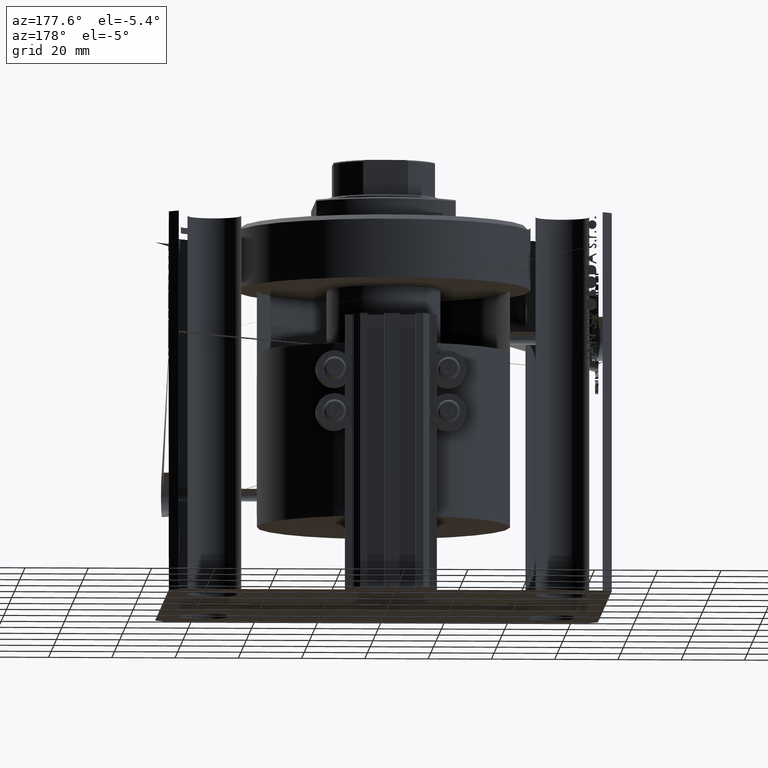
[diagram: clean part render]
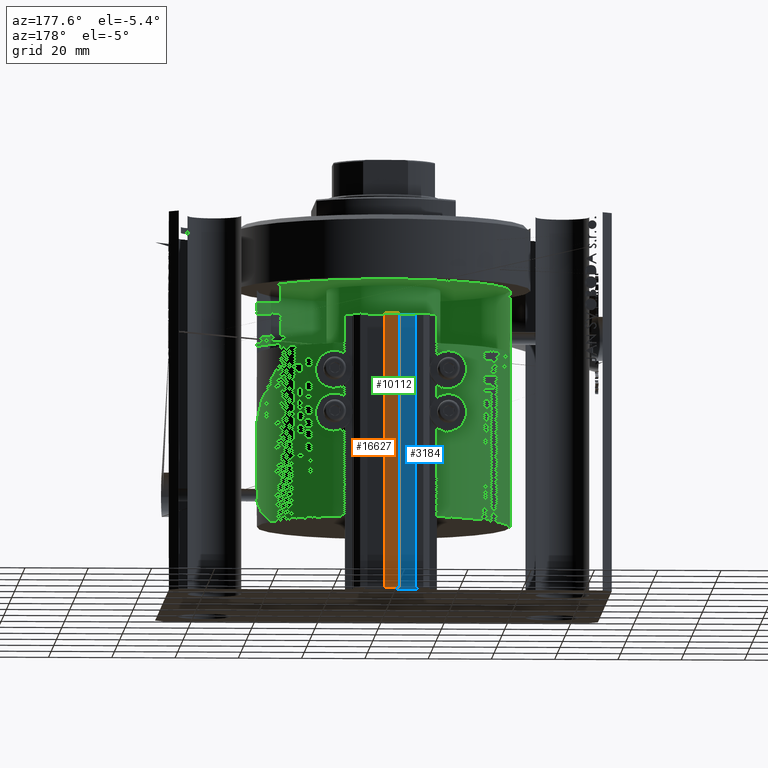
[diagram: same view with three faces highlighted in distinct colors, each labeled with its STEP entity id]
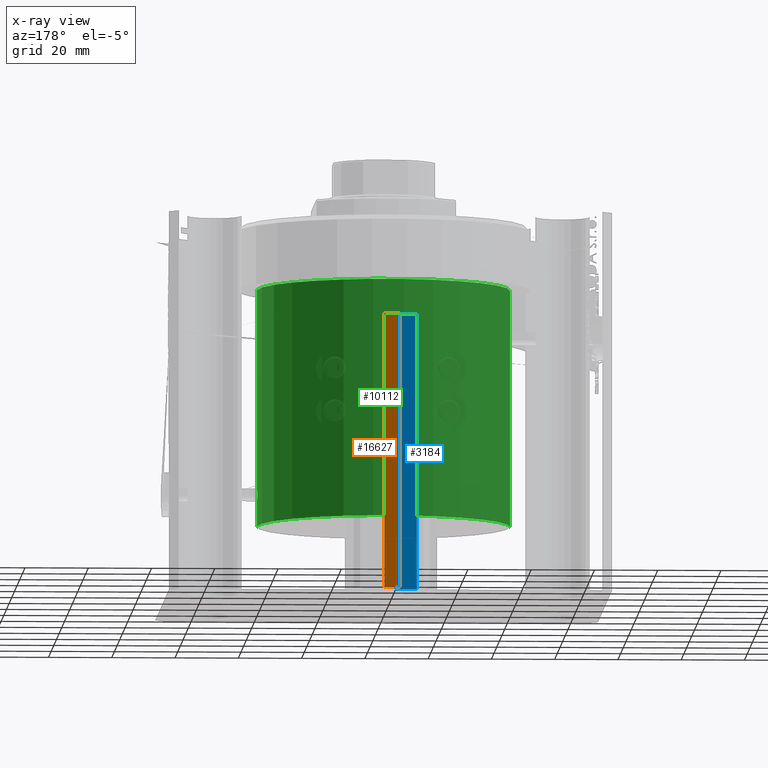
[diagram: x-ray of the same camera — body ghosted, the three highlighted faces saturated]
A machine part, auxiliary view with three faces highlighted in distinct colors.
The next image is the same camera in x-ray (body ghosted, the three faces saturated) — at least one of them is partly hidden behind the body in this view.
Their STEP definitions:

[orange] entity #16627 — the highlighted planar face has unit normal (0, -1, 0).
#981 = CARTESIAN_POINT ( 'NONE',  ( -2.350000000000003642, 63.00000000000000000, -120.0000000000000000 ) ) ;
#1251 = CARTESIAN_POINT ( 'NONE',  ( -2.350000000000003642, 63.00000000000000000, -120.0000000000000000 ) ) ;
#1876 = VERTEX_POINT ( 'NONE', #35147 ) ;
#4576 = DIRECTION ( 'NONE',  ( 0.000000000000000000, -1.000000000000000000, 0.000000000000000000 ) ) ;
#5022 = CARTESIAN_POINT ( 'NONE',  ( -2.350000000000003642, 63.00000000000000000, -120.0000000000000000 ) ) ;
#5059 = ORIENTED_EDGE ( 'NONE', *, *, #22634, .F. ) ;
#6396 = VERTEX_POINT ( 'NONE', #7676 ) ;
#7676 = CARTESIAN_POINT ( 'NONE',  ( -2.350000000000003642, 63.00000000000000000, -33.00000000000000000 ) ) ;
#8048 = CARTESIAN_POINT ( 'NONE',  ( 2.349999999999999645, 63.00000000000000000, -120.0000000000000000 ) ) ;
#9181 = ORIENTED_EDGE ( 'NONE', *, *, #10266, .T. ) ;
#10266 = EDGE_CURVE ( 'NONE', #41675, #6396, #30079, .T. ) ;
#11226 = CARTESIAN_POINT ( 'NONE',  ( 2.349999999999999645, 63.00000000000000000, -33.00000000000000000 ) ) ;
#11426 = DIRECTION ( 'NONE',  ( 1.000000000000000000, 0.000000000000000000, 0.000000000000000000 ) ) ;
#11943 = LINE ( 'NONE', #5022, #18334 ) ;
#15313 = PLANE ( 'NONE',  #30048 ) ;
#15441 = LINE ( 'NONE', #8048, #18069 ) ;
#16627 = ADVANCED_FACE ( 'NONE', ( #18644 ), #15313, .F. ) ;
#17625 = VECTOR ( 'NONE', #11426, 1000.000000000000000 ) ;
#18069 = VECTOR ( 'NONE', #40510, 1000.000000000000000 ) ;
#18334 = VECTOR ( 'NONE', #19564, 1000.000000000000000 ) ;
#18644 = FACE_OUTER_BOUND ( 'NONE', #44855, .T. ) ;
#19099 = CARTESIAN_POINT ( 'NONE',  ( -2.350000000000003642, 63.00000000000000000, -120.0000000000000000 ) ) ;
#19564 = DIRECTION ( 'NONE',  ( 1.000000000000000000, 0.000000000000000000, 0.000000000000000000 ) ) ;
#21586 = VERTEX_POINT ( 'NONE', #11226 ) ;
#22634 = EDGE_CURVE ( 'NONE', #41675, #1876, #11943, .T. ) ;
#24196 = EDGE_CURVE ( 'NONE', #6396, #21586, #31797, .T. ) ;
#29376 = DIRECTION ( 'NONE',  ( 0.000000000000000000, -0.000000000000000000, -1.000000000000000000 ) ) ;
#30048 = AXIS2_PLACEMENT_3D ( 'NONE', #981, #4576, #29376 ) ;
#30079 = LINE ( 'NONE', #19099, #38144 ) ;
#30594 = ORIENTED_EDGE ( 'NONE', *, *, #42970, .F. ) ;
#31797 = LINE ( 'NONE', #46600, #17625 ) ;
#35147 = CARTESIAN_POINT ( 'NONE',  ( 2.349999999999999645, 63.00000000000000000, -120.0000000000000000 ) ) ;
#38144 = VECTOR ( 'NONE', #45105, 1000.000000000000000 ) ;
#40510 = DIRECTION ( 'NONE',  ( 0.000000000000000000, 0.000000000000000000, 1.000000000000000000 ) ) ;
#41675 = VERTEX_POINT ( 'NONE', #1251 ) ;
#42726 = ORIENTED_EDGE ( 'NONE', *, *, #24196, .T. ) ;
#42970 = EDGE_CURVE ( 'NONE', #1876, #21586, #15441, .T. ) ;
#44855 = EDGE_LOOP ( 'NONE', ( #42726, #30594, #5059, #9181 ) ) ;
#45105 = DIRECTION ( 'NONE',  ( 0.000000000000000000, 0.000000000000000000, 1.000000000000000000 ) ) ;
#46600 = CARTESIAN_POINT ( 'NONE',  ( -2.350000000000003642, 63.00000000000000000, -33.00000000000000000 ) ) ;

[blue] entity #3184 — the highlighted planar face has unit normal (0, 1, 0).
#3184 = ADVANCED_FACE ( 'NONE', ( #34362 ), #37241, .T. ) ;
#3461 = VERTEX_POINT ( 'NONE', #28371 ) ;
#3979 = EDGE_CURVE ( 'NONE', #14997, #35360, #21117, .T. ) ;
#6338 = CARTESIAN_POINT ( 'NONE',  ( -8.199999999999997513, 57.00000000000000000, -120.0000000000000000 ) ) ;
#6560 = CARTESIAN_POINT ( 'NONE',  ( -1.800000000000000933, 57.00000000000000000, -120.0000000000000000 ) ) ;
#6687 = ORIENTED_EDGE ( 'NONE', *, *, #3979, .F. ) ;
#7296 = VECTOR ( 'NONE', #36136, 1000.000000000000000 ) ;
#11487 = EDGE_LOOP ( 'NONE', ( #6687, #25676, #11502, #20568 ) ) ;
#11502 = ORIENTED_EDGE ( 'NONE', *, *, #26710, .T. ) ;
#13139 = VECTOR ( 'NONE', #16170, 1000.000000000000000 ) ;
#13250 = LINE ( 'NONE', #6338, #22229 ) ;
#14997 = VERTEX_POINT ( 'NONE', #22366 ) ;
#15533 = DIRECTION ( 'NONE',  ( 0.000000000000000000, 1.000000000000000000, -0.000000000000000000 ) ) ;
#16004 = DIRECTION ( 'NONE',  ( 0.000000000000000000, 0.000000000000000000, 1.000000000000000000 ) ) ;
#16170 = DIRECTION ( 'NONE',  ( -1.000000000000000000, 0.000000000000000000, 0.000000000000000000 ) ) ;
#17091 = CARTESIAN_POINT ( 'NONE',  ( -8.199999999999997513, 57.00000000000000000, -33.00000000000000000 ) ) ;
#19933 = DIRECTION ( 'NONE',  ( 0.000000000000000000, 0.000000000000000000, 1.000000000000000000 ) ) ;
#20568 = ORIENTED_EDGE ( 'NONE', *, *, #24765, .T. ) ;
#21117 = LINE ( 'NONE', #43528, #7296 ) ;
#22229 = VECTOR ( 'NONE', #19933, 1000.000000000000000 ) ;
#22366 = CARTESIAN_POINT ( 'NONE',  ( -1.800000000000000933, 57.00000000000000000, -33.00000000000000000 ) ) ;
#23239 = CARTESIAN_POINT ( 'NONE',  ( -1.800000000000000933, 57.00000000000000000, -120.0000000000000000 ) ) ;
#24141 = VERTEX_POINT ( 'NONE', #23239 ) ;
#24765 = EDGE_CURVE ( 'NONE', #3461, #35360, #13250, .T. ) ;
#25063 = VECTOR ( 'NONE', #45927, 1000.000000000000000 ) ;
#25676 = ORIENTED_EDGE ( 'NONE', *, *, #46755, .F. ) ;
#26710 = EDGE_CURVE ( 'NONE', #24141, #3461, #32722, .T. ) ;
#28371 = CARTESIAN_POINT ( 'NONE',  ( -8.199999999999997513, 57.00000000000000000, -120.0000000000000000 ) ) ;
#30317 = CARTESIAN_POINT ( 'NONE',  ( -1.800000000000000933, 57.00000000000000000, -120.0000000000000000 ) ) ;
#32722 = LINE ( 'NONE', #43700, #13139 ) ;
#33169 = AXIS2_PLACEMENT_3D ( 'NONE', #30317, #15533, #16004 ) ;
#34362 = FACE_OUTER_BOUND ( 'NONE', #11487, .T. ) ;
#35360 = VERTEX_POINT ( 'NONE', #17091 ) ;
#36136 = DIRECTION ( 'NONE',  ( -1.000000000000000000, 0.000000000000000000, 0.000000000000000000 ) ) ;
#37241 = PLANE ( 'NONE',  #33169 ) ;
#38538 = LINE ( 'NONE', #6560, #25063 ) ;
#43528 = CARTESIAN_POINT ( 'NONE',  ( -1.800000000000000933, 57.00000000000000000, -33.00000000000000000 ) ) ;
#43700 = CARTESIAN_POINT ( 'NONE',  ( -1.800000000000000933, 57.00000000000000000, -120.0000000000000000 ) ) ;
#45927 = DIRECTION ( 'NONE',  ( 0.000000000000000000, 0.000000000000000000, 1.000000000000000000 ) ) ;
#46755 = EDGE_CURVE ( 'NONE', #24141, #14997, #38538, .T. ) ;

[green] entity #10112 — the highlighted cylindrical surface (partial cylindrical patch) has radius 40 mm, axis along (0, 0, 1).
#730 = CARTESIAN_POINT ( 'NONE',  ( 39.99999999999999289, 0.1321969090936832014, -87.00000000000001421 ) ) ;
#873 = CARTESIAN_POINT ( 'NONE',  ( 40.00000000000000000, 0.000000000000000000, -95.00000000000000000 ) ) ;
#936 = CARTESIAN_POINT ( 'NONE',  ( -39.98755980670525645, 1.003394358445550694, -36.73498561931656781 ) ) ;
#1178 = CARTESIAN_POINT ( 'NONE',  ( -39.99035901532459292, 0.8864973422255639779, -36.79758953480038031 ) ) ;
#1445 = CARTESIAN_POINT ( 'NONE',  ( 39.97823849595685175, 1.322484529437312650, -86.50600888624524032 ) ) ;
#1877 = CARTESIAN_POINT ( 'NONE',  ( -39.96191547756571794, 1.747935593588226810, -33.99372052401368194 ) ) ;
#3153 = DIRECTION ( 'NONE',  ( -0.000000000000000000, -0.000000000000000000, 1.000000000000000000 ) ) ;
#3527 = VECTOR ( 'NONE', #28763, 1000.000000000000000 ) ;
#3904 = CARTESIAN_POINT ( 'NONE',  ( -40.00000000000000000, 4.898587196589413026E-15, -95.00000000000000000 ) ) ;
#4221 = ORIENTED_EDGE ( 'NONE', *, *, #5164, .F. ) ;
#4531 = CARTESIAN_POINT ( 'NONE',  ( -39.96843077430287394, 1.590532281203076215, -36.21950461315501002 ) ) ;
#4653 = VERTEX_POINT ( 'NONE', #17108 ) ;
#4772 = CARTESIAN_POINT ( 'NONE',  ( -39.94996638891713303, 2.000046381102384974, -35.12975685824790872 ) ) ;
#4946 = CIRCLE ( 'NONE', #20950, 40.00000000000000000 ) ;
#5164 = EDGE_CURVE ( 'NONE', #5326, #8748, #25844, .T. ) ;
#5261 = CARTESIAN_POINT ( 'NONE',  ( 39.95268414756683484, 1.947559645210714674, -85.52432767386868306 ) ) ;
#5326 = VERTEX_POINT ( 'NONE', #41823 ) ;
#5535 = EDGE_CURVE ( 'NONE', #24696, #45993, #4946, .T. ) ;
#6413 = CARTESIAN_POINT ( 'NONE',  ( 39.98756496795039794, 1.003187065221004648, -83.26489670948993194 ) ) ;
#7905 = CARTESIAN_POINT ( 'NONE',  ( 0.000000000000000000, 0.000000000000000000, -20.00000000000000355 ) ) ;
#8142 = B_SPLINE_CURVE_WITH_KNOTS ( 'NONE', 3,
 ( #16203, #41510, #11932, #8342, #15499, #45546, #34106, #16439, #41274, #30042, #1877, #22899, #26474, #4772, #22668, #8813, #38141, #19306, #33862, #4531, #26937, #37681, #23140, #936, #1178, #45309, #12623, #23382, #9038, #37916 ),
 .UNSPECIFIED., .F., .F.,
 ( 4, 2, 2, 2, 2, 2, 2, 2, 2, 2, 2, 2, 2, 2, 4 ),
 ( 3.087105484439743043E-19, 0.0003908679763826832377, 0.0007817359527653661502, 0.001172603929148049009, 0.001563471905530731867, 0.002345207858296083706, 0.003126943811061435544, 0.003517811787444111681, 0.003908679763826786516, 0.004299547740209463086, 0.004690415716592138788, 0.005081283692974815358, 0.005472151669357490193, 0.005863019645740165896, 0.006253887622122840731 ),
 .UNSPECIFIED. ) ;
#8342 = CARTESIAN_POINT ( 'NONE',  ( -39.99685289554154366, 0.5177847365437173721, -33.06379604364708769 ) ) ;
#8748 = VERTEX_POINT ( 'NONE', #36566 ) ;
#8813 = CARTESIAN_POINT ( 'NONE',  ( -39.95313149897170746, 1.935958995947111294, -35.51881372483516941 ) ) ;
#9038 = CARTESIAN_POINT ( 'NONE',  ( -39.99999999999999289, 0.1305408908116475475, -36.99999999999998579 ) ) ;
#10112 = ADVANCED_FACE ( 'NONE', ( #10314 ), #46117, .F. ) ;
#10212 = CARTESIAN_POINT ( 'NONE',  ( 40.00000000000000000, 0.1305111693278485918, -82.99999999999994316 ) ) ;
#10314 = FACE_OUTER_BOUND ( 'NONE', #46997, .T. ) ;
#10393 = EDGE_CURVE ( 'NONE', #47195, #15891, #40222, .T. ) ;
#10581 = CARTESIAN_POINT ( 'NONE',  ( 40.00000000000000000, 0.000000000000000000, -95.00000000000000000 ) ) ;
#10740 = AXIS2_PLACEMENT_3D ( 'NONE', #16758, #3153, #20577 ) ;
#11728 = DIRECTION ( 'NONE',  ( 1.000000000000000000, 0.000000000000000000, 0.000000000000000000 ) ) ;
#11932 = CARTESIAN_POINT ( 'NONE',  ( -39.99934543628835826, 0.2621206772944133512, -33.01297218325230887 ) ) ;
#12189 = CARTESIAN_POINT ( 'NONE',  ( 39.98759288254257172, 1.002119990237823499, -86.73575586470111887 ) ) ;
#12623 = CARTESIAN_POINT ( 'NONE',  ( -39.99683256694736144, 0.5194325103739407812, -36.93578600311449378 ) ) ;
#12939 = CARTESIAN_POINT ( 'NONE',  ( 0.000000000000000000, 0.000000000000000000, -95.00000000000000000 ) ) ;
#13331 = CARTESIAN_POINT ( 'NONE',  ( 39.99036315117484719, 0.8863074176598244591, -83.20231909422288652 ) ) ;
#13470 = DIRECTION ( 'NONE',  ( -0.000000000000000000, -0.000000000000000000, 1.000000000000000000 ) ) ;
#13834 = EDGE_CURVE ( 'NONE', #34479, #8748, #8142, .T. ) ;
#13996 = CARTESIAN_POINT ( 'NONE',  ( 39.94996871087634105, 2.000000000000458300, -84.99999999999998579 ) ) ;
#14055 = VECTOR ( 'NONE', #43517, 1000.000000000000000 ) ;
#14167 = EDGE_CURVE ( 'NONE', #4653, #47195, #22599, .T. ) ;
#14261 = CARTESIAN_POINT ( 'NONE',  ( 39.95961195549606515, 1.797756837149760978, -84.11386492750068555 ) ) ;
#14614 = CARTESIAN_POINT ( 'NONE',  ( -40.00000000000000000, 3.176717991102973922E-16, -32.99999999999999289 ) ) ;
#15300 = CARTESIAN_POINT ( 'NONE',  ( 39.99934513831946958, 0.2621798624261794664, -86.98702196541452736 ) ) ;
#15499 = CARTESIAN_POINT ( 'NONE',  ( -39.99498566902682484, 0.6448208412979499204, -33.10226605812628264 ) ) ;
#15891 = VERTEX_POINT ( 'NONE', #13996 ) ;
#16203 = CARTESIAN_POINT ( 'NONE',  ( -40.00000000000000000, 3.176717991102973922E-16, -32.99999999999999289 ) ) ;
#16235 = CARTESIAN_POINT ( 'NONE',  ( 40.00000000000000000, 3.022137594547156248E-17, -87.00000000000000000 ) ) ;
#16439 = CARTESIAN_POINT ( 'NONE',  ( -39.98155931191828927, 1.219319673654558844, -33.40929441127704536 ) ) ;
#16758 = CARTESIAN_POINT ( 'NONE',  ( 0.000000000000000000, 0.000000000000000000, -95.00000000000000000 ) ) ;
#17108 = CARTESIAN_POINT ( 'NONE',  ( 40.00000000000000000, 0.000000000000000000, -95.00000000000000000 ) ) ;
#17600 = CARTESIAN_POINT ( 'NONE',  ( 39.94996871087634815, 2.000000000000458300, -84.86955743139924380 ) ) ;
#17953 = EDGE_CURVE ( 'NONE', #15891, #45325, #22056, .T. ) ;
#17976 = LINE ( 'NONE', #10581, #18096 ) ;
#18096 = VECTOR ( 'NONE', #13470, 1000.000000000000000 ) ;
#18751 = CARTESIAN_POINT ( 'NONE',  ( 40.00000000000000000, 0.000000000000000000, -20.00000000000000355 ) ) ;
#19306 = CARTESIAN_POINT ( 'NONE',  ( -39.95960167186748890, 1.797984772084965543, -35.88567634638035742 ) ) ;
#19777 = ORIENTED_EDGE ( 'NONE', *, *, #13834, .T. ) ;
#20577 = DIRECTION ( 'NONE',  ( 1.000000000000000000, 0.000000000000000000, 0.000000000000000000 ) ) ;
#20950 = AXIS2_PLACEMENT_3D ( 'NONE', #7905, #34134, #11728 ) ;
#20957 = CARTESIAN_POINT ( 'NONE',  ( 39.99683397345101810, 0.5193173888100585112, -83.06418508701626990 ) ) ;
#21332 = CARTESIAN_POINT ( 'NONE',  ( 40.00000000000000000, -7.123019543693126097E-24, -82.99999999999998579 ) ) ;
#21552 = CIRCLE ( 'NONE', #24584, 40.00000000000000000 ) ;
#22056 = B_SPLINE_CURVE_WITH_KNOTS ( 'NONE', 3,
 ( #24537, #17600, #46972, #28095, #46729, #14261, #24775, #31915, #39097, #25235, #32636, #6413, #13331, #28807, #20957, #42667, #10212, #43367 ),
 .UNSPECIFIED., .F., .F.,
 ( 4, 2, 2, 2, 2, 2, 2, 2, 4 ),
 ( 0.003127655752042789172, 0.003518434735802910326, 0.003909213719563031479, 0.004299992703323152199, 0.004690771687083273786, 0.005081550670843395373, 0.005472329654603516093, 0.005863108638363636813, 0.006253887622123758400 ),
 .UNSPECIFIED. ) ;
#22599 = LINE ( 'NONE', #873, #43006 ) ;
#22668 = CARTESIAN_POINT ( 'NONE',  ( -39.95062375609131777, 1.987036815800614642, -35.26227773012374911 ) ) ;
#22899 = CARTESIAN_POINT ( 'NONE',  ( -39.95269218207678819, 1.947396949689283119, -34.47509777723391977 ) ) ;
#23140 = CARTESIAN_POINT ( 'NONE',  ( -39.98153721162278629, 1.220008905300839608, -36.59014263787319976 ) ) ;
#23172 = CARTESIAN_POINT ( 'NONE',  ( 39.99685149082506541, 0.5179001791355952733, -86.93617508912632275 ) ) ;
#23382 = CARTESIAN_POINT ( 'NONE',  ( -39.99933990797904926, 0.2631205944229108584, -36.98691850247509905 ) ) ;
#24537 = CARTESIAN_POINT ( 'NONE',  ( 39.94996871087634105, 2.000000000000458300, -84.99999999999998579 ) ) ;
#24584 = AXIS2_PLACEMENT_3D ( 'NONE', #12939, #34892, #37992 ) ;
#24696 = VERTEX_POINT ( 'NONE', #18751 ) ;
#24775 = CARTESIAN_POINT ( 'NONE',  ( 39.96241579707638181, 1.735101203729181307, -83.99680496632646509 ) ) ;
#25235 = CARTESIAN_POINT ( 'NONE',  ( 39.97829218842755949, 1.320937632928927741, -83.49250256667733083 ) ) ;
#25844 = LINE ( 'NONE', #3904, #14055 ) ;
#26026 = ORIENTED_EDGE ( 'NONE', *, *, #5535, .T. ) ;
#26268 = CARTESIAN_POINT ( 'NONE',  ( 39.96190461752344447, 1.748181485672914093, -86.00586757298763985 ) ) ;
#26474 = CARTESIAN_POINT ( 'NONE',  ( -39.94997337387901126, 1.999906856589179771, -34.73834748183895726 ) ) ;
#26735 = CARTESIAN_POINT ( 'NONE',  ( 39.98155206755719604, 1.219558643123237696, -86.59052494877072093 ) ) ;
#26937 = CARTESIAN_POINT ( 'NONE',  ( -39.97167824115165757, 1.507866514858795748, -36.32051891686420220 ) ) ;
#27145 = CARTESIAN_POINT ( 'NONE',  ( 40.00000000000000000, 3.022137594547156248E-17, -87.00000000000000000 ) ) ;
#28095 = CARTESIAN_POINT ( 'NONE',  ( 39.95313906850238794, 1.935803218567043738, -84.48061374223441078 ) ) ;
#28763 = DIRECTION ( 'NONE',  ( -0.000000000000000000, -0.000000000000000000, 1.000000000000000000 ) ) ;
#28807 = CARTESIAN_POINT ( 'NONE',  ( 39.99499935316635657, 0.6439817867486670178, -83.10197867874718725 ) ) ;
#29224 = LINE ( 'NONE', #36628, #3527 ) ;
#29837 = CARTESIAN_POINT ( 'NONE',  ( 39.99498341981901461, 0.6449644383382160395, -86.89768711383446487 ) ) ;
#30042 = CARTESIAN_POINT ( 'NONE',  ( -39.96845582698919941, 1.598940400393649819, -33.77058047739597413 ) ) ;
#30541 = CARTESIAN_POINT ( 'NONE',  ( 39.96844549051295559, 1.599199597524137317, -86.22909439486065253 ) ) ;
#31009 = EDGE_CURVE ( 'NONE', #4653, #5326, #21552, .T. ) ;
#31915 = CARTESIAN_POINT ( 'NONE',  ( 39.96844091090332540, 1.590277861643260238, -83.78016690258999688 ) ) ;
#32636 = CARTESIAN_POINT ( 'NONE',  ( 39.98154439070758315, 1.219772309801767651, -83.40967826248693484 ) ) ;
#33862 = CARTESIAN_POINT ( 'NONE',  ( -39.96240535388719906, 1.735341415802265086, -36.00278343108410439 ) ) ;
#34106 = CARTESIAN_POINT ( 'NONE',  ( -39.98759801293407179, 1.001913486779978824, -33.26412727956110871 ) ) ;
#34134 = DIRECTION ( 'NONE',  ( 0.000000000000000000, 0.000000000000000000, 1.000000000000000000 ) ) ;
#34479 = VERTEX_POINT ( 'NONE', #14614 ) ;
#34697 = ORIENTED_EDGE ( 'NONE', *, *, #10393, .T. ) ;
#34892 = DIRECTION ( 'NONE',  ( 0.000000000000000000, 0.000000000000000000, 1.000000000000000000 ) ) ;
#36254 = ORIENTED_EDGE ( 'NONE', *, *, #14167, .T. ) ;
#36566 = CARTESIAN_POINT ( 'NONE',  ( -40.00000000000000000, 4.898587189460959019E-15, -37.00000000000000000 ) ) ;
#36628 = CARTESIAN_POINT ( 'NONE',  ( -40.00000000000000000, 4.898587196589413026E-15, -95.00000000000000000 ) ) ;
#37147 = DIRECTION ( 'NONE',  ( -0.000000000000000000, -0.000000000000000000, 1.000000000000000000 ) ) ;
#37469 = ORIENTED_EDGE ( 'NONE', *, *, #17953, .T. ) ;
#37681 = CARTESIAN_POINT ( 'NONE',  ( -39.97828381824886890, 1.321191049141055895, -36.50727762807592569 ) ) ;
#37916 = CARTESIAN_POINT ( 'NONE',  ( -40.00000000000000000, 4.898587189460959019E-15, -37.00000000000000000 ) ) ;
#37992 = DIRECTION ( 'NONE',  ( 1.000000000000000000, 0.000000000000000000, 0.000000000000000000 ) ) ;
#38141 = CARTESIAN_POINT ( 'NONE',  ( -39.95496761534566588, 1.898177513206617872, -35.64350132831550155 ) ) ;
#38870 = ORIENTED_EDGE ( 'NONE', *, *, #44098, .F. ) ;
#39097 = CARTESIAN_POINT ( 'NONE',  ( 39.97168791869498250, 1.507609851330703465, -83.67919067321091120 ) ) ;
#40222 = B_SPLINE_CURVE_WITH_KNOTS ( 'NONE', 3,
 ( #16235, #730, #15300, #23172, #29837, #45338, #12189, #26735, #1445, #30541, #26268, #5261, #44401, #40844 ),
 .UNSPECIFIED., .F., .F.,
 ( 4, 2, 2, 2, 2, 2, 4 ),
 ( 2.936885669105128817E-20, 0.0003909569690053489718, 0.0007819139380106978352, 0.001172870907016046373, 0.001563827876021395020, 0.002345741814032091879, 0.003127655752042789172 ),
 .UNSPECIFIED. ) ;
#40601 = ORIENTED_EDGE ( 'NONE', *, *, #43476, .T. ) ;
#40844 = CARTESIAN_POINT ( 'NONE',  ( 39.94996871087634105, 2.000000000000458300, -84.99999999999998579 ) ) ;
#41274 = CARTESIAN_POINT ( 'NONE',  ( -39.97824670274066960, 1.322236164346118237, -33.49377550898345390 ) ) ;
#41510 = CARTESIAN_POINT ( 'NONE',  ( -40.00000000000000000, 0.1321668174197086765, -32.99999999999998579 ) ) ;
#41823 = CARTESIAN_POINT ( 'NONE',  ( -40.00000000000000000, 4.898587196589413026E-15, -95.00000000000000000 ) ) ;
#42667 = CARTESIAN_POINT ( 'NONE',  ( 39.99934021390485839, 0.2630606439975807787, -83.01307548577453588 ) ) ;
#43006 = VECTOR ( 'NONE', #37147, 1000.000000000000000 ) ;
#43367 = CARTESIAN_POINT ( 'NONE',  ( 40.00000000000000000, -7.123019543693126097E-24, -82.99999999999998579 ) ) ;
#43437 = ORIENTED_EDGE ( 'NONE', *, *, #31009, .F. ) ;
#43476 = EDGE_CURVE ( 'NONE', #45325, #24696, #17976, .T. ) ;
#43517 = DIRECTION ( 'NONE',  ( -0.000000000000000000, -0.000000000000000000, 1.000000000000000000 ) ) ;
#44098 = EDGE_CURVE ( 'NONE', #34479, #45993, #29224, .T. ) ;
#44401 = CARTESIAN_POINT ( 'NONE',  ( 39.94996871087634105, 2.000000000000458300, -85.26100396064657616 ) ) ;
#45309 = CARTESIAN_POINT ( 'NONE',  ( -39.99499715356421348, 0.6441229686298113322, -36.89797557273014661 ) ) ;
#45325 = VERTEX_POINT ( 'NONE', #21332 ) ;
#45332 = CARTESIAN_POINT ( 'NONE',  ( -40.00000000000000000, 4.898587196589413026E-15, -20.00000000000000355 ) ) ;
#45338 = CARTESIAN_POINT ( 'NONE',  ( 39.99034271445660949, 0.8872245818428182718, -86.79722787929314620 ) ) ;
#45546 = CARTESIAN_POINT ( 'NONE',  ( -39.99034680283174481, 0.8870373003876257378, -33.20268175905523123 ) ) ;
#45993 = VERTEX_POINT ( 'NONE', #45332 ) ;
#46117 = CYLINDRICAL_SURFACE ( 'NONE', #10740, 40.00000000000000000 ) ;
#46729 = CARTESIAN_POINT ( 'NONE',  ( 39.95497632853201964, 1.897994695932949671, -84.35596494936800127 ) ) ;
#46972 = CARTESIAN_POINT ( 'NONE',  ( 39.95062818562870888, 1.986948187989950876, -84.73706829020871112 ) ) ;
#46997 = EDGE_LOOP ( 'NONE', ( #4221, #43437, #36254, #34697, #37469, #40601, #26026, #38870, #19777 ) ) ;
#47195 = VERTEX_POINT ( 'NONE', #27145 ) ;